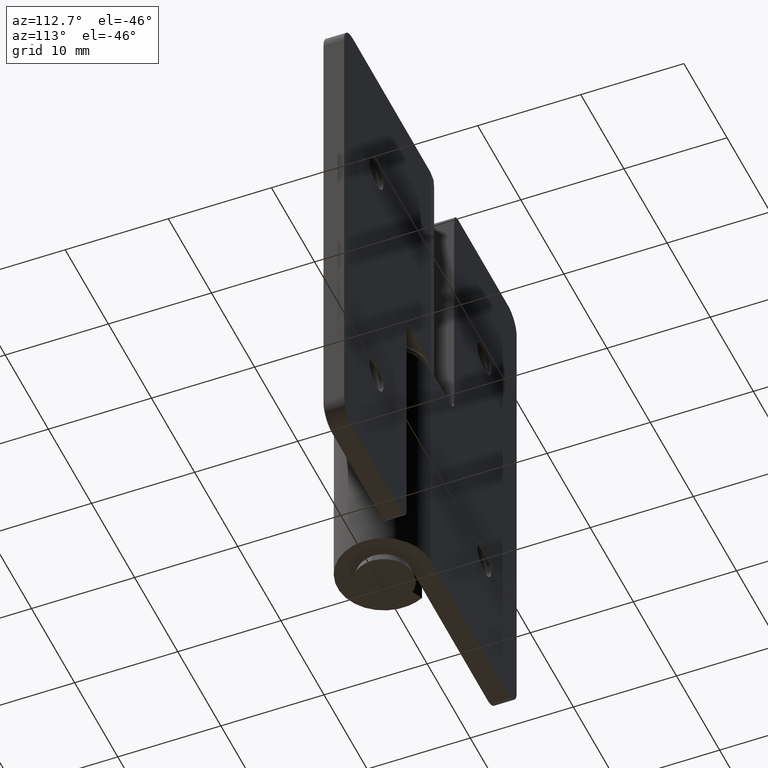
[diagram: clean part render]
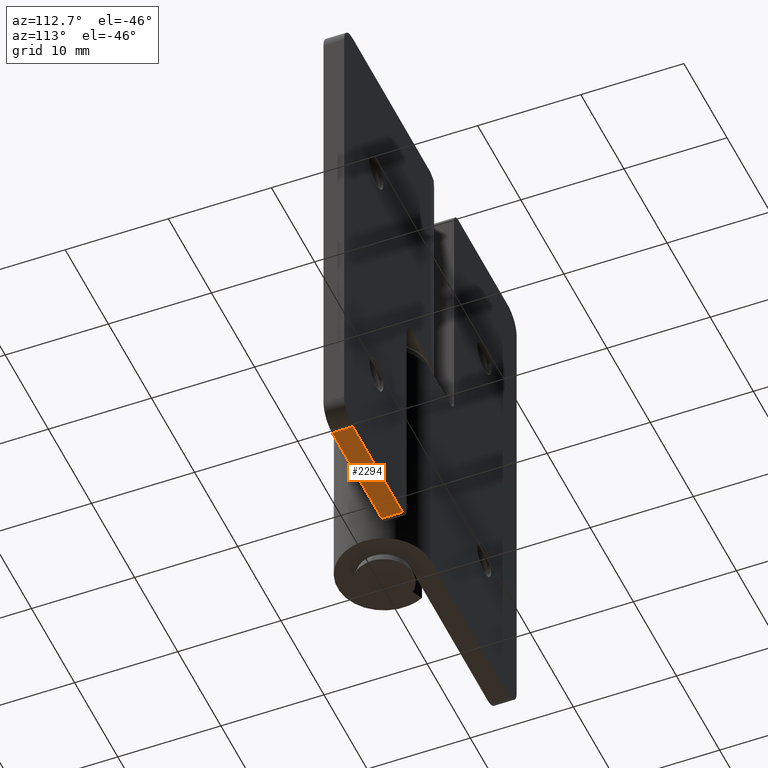
[diagram: same view with one face highlighted and labeled with its STEP entity id]
A machine part, auxiliary view. The second image highlights one B-rep face of the part: STEP entity #2294.
In plain terms, the highlighted face is a freeform B-spline surface patch.
Its self-contained STEP definition (entity closure, byte-faithful):
#1867=CARTESIAN_POINT('',(6.500000000000000,2.499999999979035,0.0));
#1868=VERTEX_POINT('',#1867);
#1889=CARTESIAN_POINT('',(6.500000000000000,4.500000000000000,0.0));
#1890=VERTEX_POINT('',#1889);
#1904=CARTESIAN_POINT('',(6.500000000000000,2.499999999979035,0.0));
#1905=CARTESIAN_POINT('',(6.500000000000000,4.500000000000000,0.0));
#1906=QUASI_UNIFORM_CURVE('',1,(#1904,#1905),.UNSPECIFIED.,.F.,.U.);
#1907=EDGE_CURVE('',#1868,#1890,#1906,.T.);
#1987=CARTESIAN_POINT('',(17.999999999990749,2.499999999941790,0.0));
#1988=VERTEX_POINT('',#1987);
#2004=CARTESIAN_POINT('',(17.999999999990749,4.500000000000000,0.0));
#2005=VERTEX_POINT('',#2004);
#2006=CARTESIAN_POINT('',(17.999999999990749,4.500000000000000,0.0));
#2007=CARTESIAN_POINT('',(17.999999999990749,2.499999999941790,0.0));
#2008=QUASI_UNIFORM_CURVE('',1,(#2006,#2007),.UNSPECIFIED.,.F.,.U.);
#2009=EDGE_CURVE('',#2005,#1988,#2008,.T.);
#2275=CARTESIAN_POINT('',(5.925575022289692,4.599899996126521,0.0));
#2276=CARTESIAN_POINT('',(18.574425286155101,4.599899996126521,0.0));
#2277=CARTESIAN_POINT('',(5.925575022289692,2.400099950171091,0.0));
#2278=CARTESIAN_POINT('',(18.574425286155101,2.400099950171091,0.0));
#2279=B_SPLINE_SURFACE_WITH_KNOTS('',1,1,((#2275,#2277),(#2276,#2278)),.UNSPECIFIED.,.F.,.F.,.U.,(2,2),(2,2),(0.0,12.648850263865411),(0.0,2.199800045955430),.UNSPECIFIED.);
#2280=CARTESIAN_POINT('',(6.500000000000000,2.499999999979035,0.0));
#2281=CARTESIAN_POINT('',(17.999999999990749,2.499999999941790,0.0));
#2282=QUASI_UNIFORM_CURVE('',1,(#2280,#2281),.UNSPECIFIED.,.F.,.U.);
#2283=EDGE_CURVE('',#1868,#1988,#2282,.T.);
#2284=ORIENTED_EDGE('',*,*,#2283,.F.);
#2285=ORIENTED_EDGE('',*,*,#1907,.T.);
#2286=CARTESIAN_POINT('',(17.999999999990749,4.500000000000000,0.0));
#2287=CARTESIAN_POINT('',(6.500000000000000,4.500000000000000,0.0));
#2288=QUASI_UNIFORM_CURVE('',1,(#2286,#2287),.UNSPECIFIED.,.F.,.U.);
#2289=EDGE_CURVE('',#2005,#1890,#2288,.T.);
#2290=ORIENTED_EDGE('',*,*,#2289,.F.);
#2291=ORIENTED_EDGE('',*,*,#2009,.T.);
#2292=EDGE_LOOP('',(#2284,#2285,#2290,#2291));
#2293=FACE_OUTER_BOUND('',#2292,.T.);
#2294=ADVANCED_FACE('',(#2293),#2279,.T.);